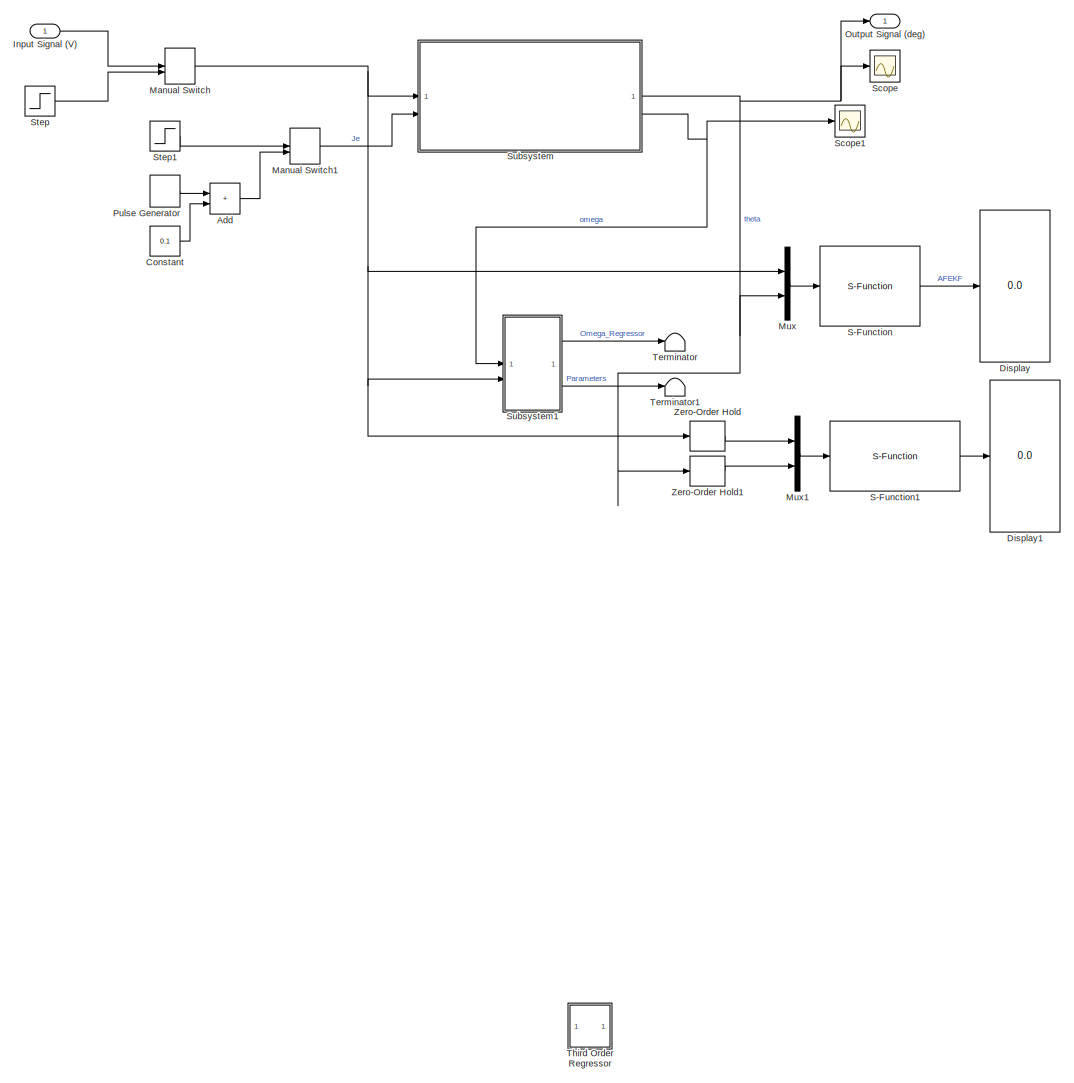
[diagram: root canvas - part 1/1, most of the canvas]
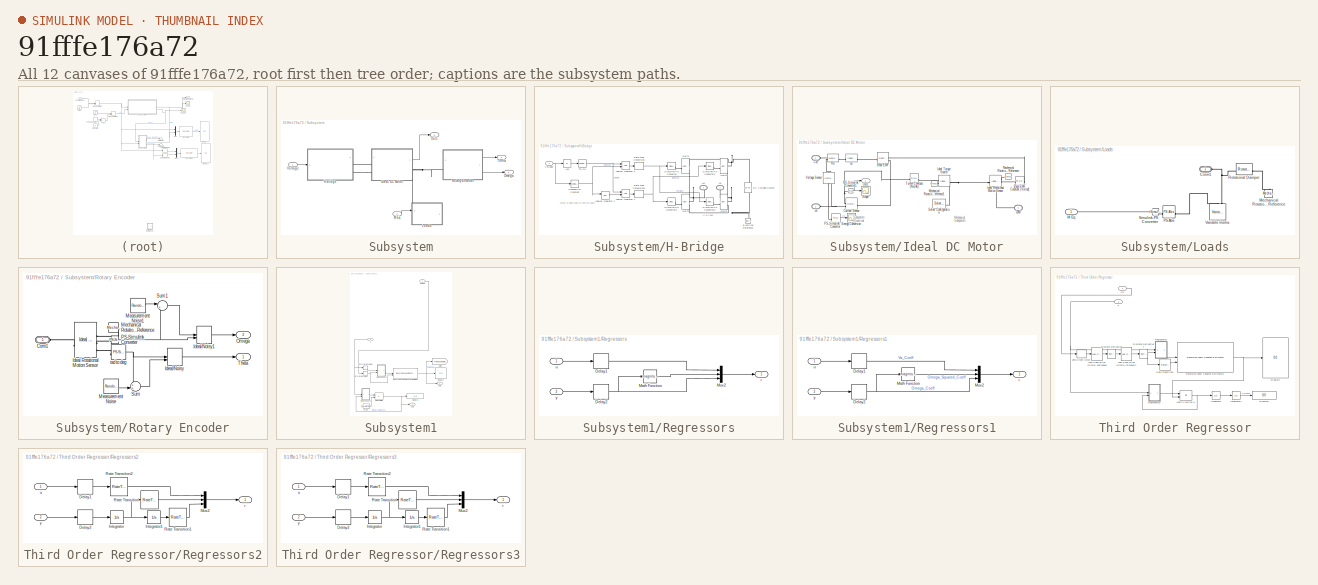
[diagram: thumbnail index - all 12 canvases of the model, root first then tree order]
MODEL slx_91fffe176a72
KIND model
CONFIG AbsTol = auto
CONFIG EnableMultiTasking = off
CONFIG FixedStep = 0.001
CONFIG MaxStep = auto
CONFIG MinStep = auto
CONFIG RelTol = 1e-3
CONFIG SampleTimeConstraint = Unconstrained
CONFIG SolverName = FixedStepAuto
CONFIG StartTime = 0.0
CONFIG StopTime = 50
BLOCK [Sum] Add
  IconShape = rectangular
BLOCK [Constant] Constant
  Value = 0.1
BLOCK [Display] Display
  Commented = on
  Decimation = 1
BLOCK [Display] Display1
  Decimation = 1
BLOCK [Inport] Input Signal (V)
  NameLocation = top
BLOCK [ManualSwitch] Manual Switch
  CurrentSetting = 0
BLOCK [ManualSwitch] Manual Switch1
BLOCK [Mux] Mux
  DisplayOption = bar
  Inputs = 2
BLOCK [Mux] Mux1
  DisplayOption = bar
  Inputs = 2
BLOCK [Outport] Output Signal (deg)
  NameLocation = top
  VectorParamsAs1DForOutWhenUnconnected = off
BLOCK [DiscretePulseGenerator] Pulse Generator
  Amplitude = 0.2
  Period = 10
  PhaseDelay = 5
  PulseType = Time based
  PulseWidth = 50
BLOCK [S-Function] S-Function
  EnableBusSupport = off
  FunctionName = AFEKF
  SFcnIsStateOwnerBlock = off
  SFunctionDeploymentMode = off
BLOCK [S-Function] S-Function1
  EnableBusSupport = off
  FunctionName = RobustEKF_DC_Motor
  SFcnIsStateOwnerBlock = off
  SFunctionDeploymentMode = off
BLOCK [Scope] Scope
  Floating = off
  NumInputPorts = 1
  ScopeSpecificationString = Simulink.scopes.TimeScopeBlockCfg('CurrentConfiguration', extmgr.ConfigurationSet(extmgr.Configuration('Core','General UI',true),extmgr.Configuration('Core','Source UI',true),extmgr.Configuration('Sources','WiredSimulink',true,'DataLoggingVariableName','ScopeData1','DataLoggingSaveFormat','StructureWithTime','DataLoggingLimitDataPoints',true,'DataLoggingDecimation','1','DataLoggingDecimateData',tr...<+1885ch>
BLOCK [Scope] Scope1
  Floating = off
  NumInputPorts = 1
  ScopeSpecificationString = Simulink.scopes.TimeScopeBlockCfg('CurrentConfiguration', extmgr.ConfigurationSet(extmgr.Configuration('Core','General UI',true),extmgr.Configuration('Core','Source UI',true),extmgr.Configuration('Sources','WiredSimulink',true),extmgr.Configuration('Visuals','Time Domain',true,'SerializedDisplays',{struct('MinYLimReal','-0.00445','MaxYLimReal','0.04009','YLabelReal','','MinYLimMag','0.00000','MaxY...<+1465ch>
BLOCK [Step] Step
  After = 12
  SampleTime = 0
  Time = 2
BLOCK [Step] Step1
  After = 0.1
  Before = 0.1
  SampleTime = 0
  Time = 5
BLOCK [SubSystem] Subsystem
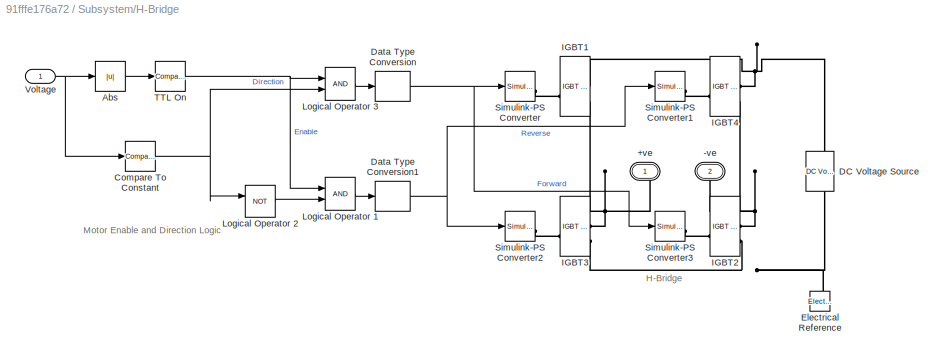
BLOCK [SubSystem] Subsystem/H-Bridge
BLOCK [PMIOPort] Subsystem/H-Bridge/+ve
  NameLocation = top
  Side = Right
  Tag = PMCPort
BLOCK [PMIOPort] Subsystem/H-Bridge/-ve
  NameLocation = top
  Port = 2
  Side = Right
  Tag = PMCPort
BLOCK [Abs] Subsystem/H-Bridge/Abs
  SaturateOnIntegerOverflow = off
BLOCK [Reference] Subsystem/H-Bridge/Compare To Constant  REF=simulink/Logic and Bit
Operations/Compare
To Constant
  SourceBlock = simulink/Logic and Bit\nOperations/Compare\nTo Constant
  SourceType = Compare To Constant
BLOCK [Reference] Subsystem/H-Bridge/DC Voltage Source  REF=fl_lib/Electrical/Electrical Sources/DC Voltage Source
  NameLocation = right
  SourceBlock = fl_lib/Electrical/Electrical Sources/DC Voltage Source
  SourceType = DC Voltage Source
BLOCK [DataTypeConversion] Subsystem/H-Bridge/Data Type Conversion
  OutDataTypeStr = double
  RndMeth = Floor
  SaturateOnIntegerOverflow = off
BLOCK [DataTypeConversion] Subsystem/H-Bridge/Data Type Conversion1
  OutDataTypeStr = double
  RndMeth = Floor
  SaturateOnIntegerOverflow = off
BLOCK [Reference] Subsystem/H-Bridge/Electrical Reference  REF=fl_lib/Electrical/Electrical Elements/Electrical Reference
  NameLocation = right
  SourceBlock = fl_lib/Electrical/Electrical Elements/Electrical Reference
  SourceType = Electrical Reference
BLOCK [Reference] Subsystem/H-Bridge/IGBT1  REF=ee_lib/Semiconductors &
Converters/IGBT
(Ideal,
Switching)
  SourceBlock = ee_lib/Semiconductors &\nConverters/IGBT\n(Ideal,\nSwitching)
  SourceType = IGBT\n(Ideal,\nSwitching)
BLOCK [Reference] Subsystem/H-Bridge/IGBT2  REF=ee_lib/Semiconductors &
Converters/IGBT
(Ideal,
Switching)
  SourceBlock = ee_lib/Semiconductors &\nConverters/IGBT\n(Ideal,\nSwitching)
  SourceType = IGBT\n(Ideal,\nSwitching)
BLOCK [Reference] Subsystem/H-Bridge/IGBT3  REF=ee_lib/Semiconductors &
Converters/IGBT
(Ideal,
Switching)
  SourceBlock = ee_lib/Semiconductors &\nConverters/IGBT\n(Ideal,\nSwitching)
  SourceType = IGBT\n(Ideal,\nSwitching)
BLOCK [Reference] Subsystem/H-Bridge/IGBT4  REF=ee_lib/Semiconductors &
Converters/IGBT
(Ideal,
Switching)
  SourceBlock = ee_lib/Semiconductors &\nConverters/IGBT\n(Ideal,\nSwitching)
  SourceType = IGBT\n(Ideal,\nSwitching)
BLOCK [Logic] Subsystem/H-Bridge/Logical Operator 1
  AllPortsSameDT = off
  OutDataTypeStr = boolean
BLOCK [Logic] Subsystem/H-Bridge/Logical Operator 2
  AllPortsSameDT = off
  Operator = NOT
  OutDataTypeStr = boolean
BLOCK [Logic] Subsystem/H-Bridge/Logical Operator 3
  AllPortsSameDT = off
  OutDataTypeStr = boolean
BLOCK [Reference] Subsystem/H-Bridge/Simulink-PS Converter  REF=nesl_utility/Simulink-PS
Converter
  SourceBlock = nesl_utility/Simulink-PS\nConverter
  SourceType = Simulink-PS\nConverter
BLOCK [Reference] Subsystem/H-Bridge/Simulink-PS Converter1  REF=nesl_utility/Simulink-PS
Converter
  SourceBlock = nesl_utility/Simulink-PS\nConverter
  SourceType = Simulink-PS\nConverter
BLOCK [Reference] Subsystem/H-Bridge/Simulink-PS Converter2  REF=nesl_utility/Simulink-PS
Converter
  SourceBlock = nesl_utility/Simulink-PS\nConverter
  SourceType = Simulink-PS\nConverter
BLOCK [Reference] Subsystem/H-Bridge/Simulink-PS Converter3  REF=nesl_utility/Simulink-PS
Converter
  SourceBlock = nesl_utility/Simulink-PS\nConverter
  SourceType = Simulink-PS\nConverter
BLOCK [Reference] Subsystem/H-Bridge/TTL On  REF=simulink/Logic and Bit
Operations/Compare
To Constant
  SourceBlock = simulink/Logic and Bit\nOperations/Compare\nTo Constant
  SourceType = Compare To Constant
BLOCK [Inport] Subsystem/H-Bridge/Voltage
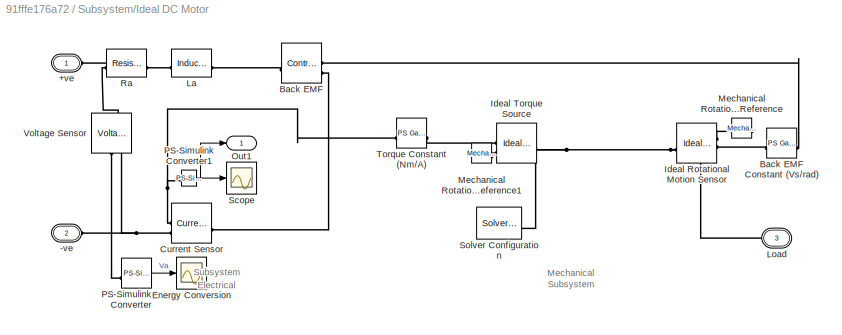
BLOCK [SubSystem] Subsystem/Ideal DC Motor
BLOCK [PMIOPort] Subsystem/Ideal DC Motor/+ve
  Side = Left
  Tag = PMCPort
BLOCK [PMIOPort] Subsystem/Ideal DC Motor/-ve
  Port = 2
  Side = Left
  Tag = PMCPort
BLOCK [Reference] Subsystem/Ideal DC Motor/Back EMF  REF=fl_lib/Electrical/Electrical Sources/Controlled Voltage
Source
  NameLocation = top
  SourceBlock = fl_lib/Electrical/Electrical Sources/Controlled Voltage\nSource
  SourceType = Controlled Voltage\nSource
BLOCK [Reference] Subsystem/Ideal DC Motor/Back EMF Constant (Vs//rad)  REF=fl_ps_legacy_lib/Legacy Physical
Signals/Functions/PS Gain
  SourceBlock = fl_ps_legacy_lib/Legacy Physical\nSignals/Functions/PS Gain
  SourceType = PS Gain
BLOCK [Reference] Subsystem/Ideal DC Motor/Current Sensor  REF=fl_lib/Electrical/Electrical Sensors/Current Sensor
  SourceBlock = fl_lib/Electrical/Electrical Sensors/Current Sensor
  SourceType = Current Sensor
BLOCK [Scope] Subsystem/Ideal DC Motor/Energy Conversion
  Floating = off
  NumInputPorts = 1
  ScopeSpecificationString = Simulink.scopes.TimeScopeBlockCfg('CurrentConfiguration', extmgr.ConfigurationSet(extmgr.Configuration('Core','General UI',true),extmgr.Configuration('Core','Source UI',true),extmgr.Configuration('Sources','WiredSimulink',true,'DataLoggingVariableName','ScopeData11','DataLoggingSaveFormat','StructureWithTime','DataLoggingDecimation','1','DataLoggingDecimateData',true),extmgr.Configuration('Visuals...<+1806ch>
BLOCK [Reference] Subsystem/Ideal DC Motor/Ideal Rotational Motion Sensor  REF=fl_lib/Mechanical/Mechanical Sensors/Ideal Rotational
Motion Sensor
  SourceBlock = fl_lib/Mechanical/Mechanical Sensors/Ideal Rotational\nMotion Sensor
  SourceType = Ideal Rotational\nMotion Sensor
BLOCK [Reference] Subsystem/Ideal DC Motor/Ideal Torque Source  REF=fl_lib/Mechanical/Mechanical Sources/Ideal Torque Source
  SourceBlock = fl_lib/Mechanical/Mechanical Sources/Ideal Torque Source
  SourceType = Ideal Torque Source
BLOCK [Reference] Subsystem/Ideal DC Motor/La  REF=fl_lib/Electrical/Electrical Elements/Inductor
  SourceBlock = fl_lib/Electrical/Electrical Elements/Inductor
  SourceType = Inductor
BLOCK [PMIOPort] Subsystem/Ideal DC Motor/Load
  Port = 3
  Side = Right
BLOCK [Reference] Subsystem/Ideal DC Motor/Mechanical Rotational Reference  REF=fl_lib/Mechanical/Rotational Elements/Mechanical
Rotational Reference
  NameLocation = top
  SourceBlock = fl_lib/Mechanical/Rotational Elements/Mechanical\nRotational Reference
  SourceType = Mechanical\nRotational Reference
BLOCK [Reference] Subsystem/Ideal DC Motor/Mechanical Rotational Reference1  REF=fl_lib/Mechanical/Rotational Elements/Mechanical
Rotational Reference
  SourceBlock = fl_lib/Mechanical/Rotational Elements/Mechanical\nRotational Reference
  SourceType = Mechanical\nRotational Reference
BLOCK [Outport] Subsystem/Ideal DC Motor/Out1
BLOCK [Reference] Subsystem/Ideal DC Motor/PS-Simulink Converter  REF=nesl_utility/PS-Simulink
Converter
  SourceBlock = nesl_utility/PS-Simulink\nConverter
  SourceType = PS-Simulink\nConverter
BLOCK [Reference] Subsystem/Ideal DC Motor/PS-Simulink Converter1  REF=nesl_utility/PS-Simulink
Converter
  SourceBlock = nesl_utility/PS-Simulink\nConverter
  SourceType = PS-Simulink\nConverter
BLOCK [Reference] Subsystem/Ideal DC Motor/Ra  REF=fl_lib/Electrical/Electrical Elements/Resistor
  SourceBlock = fl_lib/Electrical/Electrical Elements/Resistor
  SourceType = Resistor
BLOCK [Scope] Subsystem/Ideal DC Motor/Scope
  Floating = off
  NumInputPorts = 1
  ScopeSpecificationString = Simulink.scopes.TimeScopeBlockCfg('CurrentConfiguration', extmgr.ConfigurationSet(extmgr.Configuration('Core','General UI',true),extmgr.Configuration('Core','Source UI',true),extmgr.Configuration('Sources','WiredSimulink',true,'DataLoggingVariableName','ScopeData5'),extmgr.Configuration('Visuals','Time Domain',true,'SerializedDisplays',{struct('MinYLimReal','-0.14133','MaxYLimReal','1.27199','YLab...<+1524ch>
BLOCK [Reference] Subsystem/Ideal DC Motor/Solver Configuration  REF=nesl_utility/Solver
Configuration
  SourceBlock = nesl_utility/Solver\nConfiguration
  SourceType = Solver\nConfiguration
BLOCK [Reference] Subsystem/Ideal DC Motor/Torque Constant (Nm//A)  REF=fl_ps_legacy_lib/Legacy Physical
Signals/Functions/PS Gain
  SourceBlock = fl_ps_legacy_lib/Legacy Physical\nSignals/Functions/PS Gain
  SourceType = PS Gain
BLOCK [Reference] Subsystem/Ideal DC Motor/Voltage Sensor  REF=fl_lib/Electrical/Electrical Sensors/Voltage Sensor
  NameLocation = right
  SourceBlock = fl_lib/Electrical/Electrical Sensors/Voltage Sensor
  SourceType = Voltage Sensor
BLOCK [SubSystem] Subsystem/Loads
  PortSchema = {"entries":[{"content":{"sides":[{"content":{"connectorIds":["In1"]},"type":"ConnectorPlacement.EquallySpacedRectSide","uuid":"35af7967-d601-467b-871c-2decdb5f576d"},{"content":{"side":"RIGHT"},"type":"ConnectorPlacement.EquallySpacedRectSide","uuid":"f82d529b-61c3-41a9-ad40-44f1ee2700d7"},{"content":{"connectorIds":["LConn1"],"side":"TOP"},"type":"ConnectorPlacement.EquallySpacedRectSide","uuid":...<+224ch>
BLOCK [PMIOPort] Subsystem/Loads/Conn1
  Side = Left
BLOCK [Inport] Subsystem/Loads/M Eq
BLOCK [Reference] Subsystem/Loads/Mechanical Rotational Reference  REF=fl_lib/Mechanical/Rotational Elements/Mechanical
Rotational Reference
  NameLocation = right
  SourceBlock = fl_lib/Mechanical/Rotational Elements/Mechanical\nRotational Reference
  SourceType = Mechanical\nRotational Reference
BLOCK [Reference] Subsystem/Loads/PS Abs  REF=fl_lib/Physical Signals/Nonlinear Operators/PS Abs
  SourceBlock = fl_lib/Physical Signals/Nonlinear Operators/PS Abs
  SourceType = PS Abs
BLOCK [Reference] Subsystem/Loads/Rotational Damper  REF=fl_lib/Mechanical/Rotational Elements/Rotational Damper
  SourceBlock = fl_lib/Mechanical/Rotational Elements/Rotational Damper
  SourceType = Rotational Damper
BLOCK [Reference] Subsystem/Loads/Simulink-PS Converter  REF=nesl_utility/Simulink-PS
Converter
  SourceBlock = nesl_utility/Simulink-PS\nConverter
  SourceType = Simulink-PS\nConverter
BLOCK [Reference] Subsystem/Loads/Variable Inertia  REF=sdl_lib/Inertias & Loads/Variable Inertia
  NameLocation = right
  SourceBlock = sdl_lib/Inertias & Loads/Variable Inertia
  SourceType = Variable Inertia
BLOCK [Inport] Subsystem/M Eq
  Port = 2
BLOCK [Outport] Subsystem/Omega
  Port = 2
BLOCK [Outport] Subsystem/Out1
  Port = 3
BLOCK [SubSystem] Subsystem/Rotary Encoder
BLOCK [PMIOPort] Subsystem/Rotary Encoder/Conn1
  Side = Left
BLOCK [Reference] Subsystem/Rotary Encoder/Ideal Rotational Motion Sensor  REF=fl_lib/Mechanical/Mechanical Sensors/Ideal Rotational
Motion Sensor
  SourceBlock = fl_lib/Mechanical/Mechanical Sensors/Ideal Rotational\nMotion Sensor
  SourceType = Ideal Rotational\nMotion Sensor
BLOCK [ManualSwitch] Subsystem/Rotary Encoder/Ideal//Noisy
BLOCK [ManualSwitch] Subsystem/Rotary Encoder/Ideal//Noisy1
  CurrentSetting = 0
BLOCK [RandomNumber] Subsystem/Rotary Encoder/Measurement Noise
  SampleTime = 0.01
  Variance = 0.001
BLOCK [RandomNumber] Subsystem/Rotary Encoder/Measurement Noise1
  SampleTime = 0.01
  Variance = 0.0001
BLOCK [Reference] Subsystem/Rotary Encoder/Mechanical Rotational Reference  REF=fl_lib/Mechanical/Rotational Elements/Mechanical
Rotational Reference
  NameLocation = top
  SourceBlock = fl_lib/Mechanical/Rotational Elements/Mechanical\nRotational Reference
  SourceType = Mechanical\nRotational Reference
BLOCK [Outport] Subsystem/Rotary Encoder/Omega
  Port = 2
BLOCK [Reference] Subsystem/Rotary Encoder/PS-Simulink Converter  REF=nesl_utility/PS-Simulink
Converter
  SourceBlock = nesl_utility/PS-Simulink\nConverter
  SourceType = PS-Simulink\nConverter
BLOCK [Sum] Subsystem/Rotary Encoder/Sum
  Inputs = ++|
BLOCK [Sum] Subsystem/Rotary Encoder/Sum1
  Inputs = |++
BLOCK [Outport] Subsystem/Rotary Encoder/Theta
BLOCK [Reference] Subsystem/Rotary Encoder/rad to deg  REF=nesl_utility/PS-Simulink
Converter
  SourceBlock = nesl_utility/PS-Simulink\nConverter
  SourceType = PS-Simulink\nConverter
BLOCK [Outport] Subsystem/Theta
BLOCK [Inport] Subsystem/Voltage
BLOCK [SubSystem] Subsystem1
BLOCK [Display] Subsystem1/Display2
  Decimation = 1
BLOCK [Display] Subsystem1/Display3
  Decimation = 1
BLOCK [From] Subsystem1/From
  GotoTag = PARAMETERS
BLOCK [Goto] Subsystem1/Goto
  GotoTag = PARAMETERS
BLOCK [Product] Subsystem1/Matrix Multiply
  Multiplication = Matrix(*)
BLOCK [Outport] Subsystem1/Out1
BLOCK [Outport] Subsystem1/Out2
  Port = 2
BLOCK [Reference] Subsystem1/Recursive Least Squares Estimator  REF=ctrlSharedLib/Recursive Least Squares Estimator
  LibrarySourceBlock = slident/Estimators/Recursive Least Squares Estimator
  SourceBlock = ctrlSharedLib/Recursive Least Squares Estimator
  SourceType = idEstimatorsRLS
BLOCK [SubSystem] Subsystem1/Regressors
BLOCK [Delay] Subsystem1/Regressors/Delay1
  DelayLength = 1
  InitialCondition = 1
  InputPortMap = u0
  SampleTime = 0.001
BLOCK [Delay] Subsystem1/Regressors/Delay2
  DelayLength = 1
  InitialCondition = 2
  InputPortMap = u0
  SampleTime = 0.001
BLOCK [Math] Subsystem1/Regressors/Math Function
  Operator = magnitude^2
  SignedPower = on
BLOCK [Mux] Subsystem1/Regressors/Mux2
  DisplayOption = bar
  Inputs = 3
BLOCK [Outport] Subsystem1/Regressors/r
  VectorParamsAs1DForOutWhenUnconnected = off
BLOCK [Inport] Subsystem1/Regressors/u
BLOCK [Inport] Subsystem1/Regressors/y
  Port = 2
BLOCK [SubSystem] Subsystem1/Regressors1
BLOCK [Delay] Subsystem1/Regressors1/Delay1
  DelayLength = 1
  InitialCondition = 1
  InputPortMap = u0
  SampleTime = 0.001
BLOCK [Delay] Subsystem1/Regressors1/Delay2
  DelayLength = 1
  InitialCondition = 2
  InputPortMap = u0
  SampleTime = 0.001
BLOCK [Math] Subsystem1/Regressors1/Math Function
  Operator = magnitude^2
  SignedPower = on
BLOCK [Mux] Subsystem1/Regressors1/Mux2
  DisplayOption = bar
  Inputs = 3
BLOCK [Outport] Subsystem1/Regressors1/r
  VectorParamsAs1DForOutWhenUnconnected = off
BLOCK [Inport] Subsystem1/Regressors1/u
BLOCK [Inport] Subsystem1/Regressors1/y
  Port = 2
BLOCK [ZeroOrderHold] Subsystem1/Zero-Order Hold2
  SampleTime = 0.001
BLOCK [ZeroOrderHold] Subsystem1/Zero-Order Hold3
  SampleTime = 0.001
BLOCK [Inport] Subsystem1/omega
BLOCK [Inport] Subsystem1/u
  Port = 2
BLOCK [Terminator] Terminator
BLOCK [Terminator] Terminator1
BLOCK [SubSystem] Third Order Regressor
  Commented = on
BLOCK [Reference] Third Order Regressor/Discrete Derivative  REF=simulink/Discrete/Discrete Derivative
  SourceBlock = simulink/Discrete/Discrete Derivative
  SourceType = Discrete Derivative
BLOCK [Reference] Third Order Regressor/Discrete Derivative1  REF=simulink/Discrete/Discrete Derivative
  SourceBlock = simulink/Discrete/Discrete Derivative
  SourceType = Discrete Derivative
BLOCK [Display] Third Order Regressor/Display4
  Decimation = 1
BLOCK [Display] Third Order Regressor/Display5
  Decimation = 1
BLOCK [Inport] Third Order Regressor/In1
BLOCK [Integrator] Third Order Regressor/Integrator
BLOCK [Integrator] Third Order Regressor/Integrator1
BLOCK [Reference] Third Order Regressor/Low-Pass Filter (Discrete or Continuous)  REF=eeGeneralControl/Low-Pass Filter
(Discrete or Continuous)
  LibrarySourceBlock = ee_sl_lib/General Control/Low-Pass Filter\n(Discrete or Continuous)
  SourceBlock = eeGeneralControl/Low-Pass Filter\n(Discrete or Continuous)
  SourceType = Low-Pass Filter (Discrete or Continuous)
BLOCK [Reference] Third Order Regressor/Low-Pass Filter (Discrete or Continuous)1  REF=eeGeneralControl/Low-Pass Filter
(Discrete or Continuous)
  LibrarySourceBlock = ee_sl_lib/General Control/Low-Pass Filter\n(Discrete or Continuous)
  SourceBlock = eeGeneralControl/Low-Pass Filter\n(Discrete or Continuous)
  SourceType = Low-Pass Filter (Discrete or Continuous)
BLOCK [Product] Third Order Regressor/Matrix Multiply1
  Multiplication = Matrix(*)
BLOCK [RateTransition] Third Order Regressor/Rate Transition1
  OutPortSampleTime = 0.001
BLOCK [Reference] Third Order Regressor/Recursive Least Squares Estimator1  REF=ctrlSharedLib/Recursive Least Squares Estimator
  LibrarySourceBlock = slident/Estimators/Recursive Least Squares Estimator
  SourceBlock = ctrlSharedLib/Recursive Least Squares Estimator
  SourceType = idEstimatorsRLS
BLOCK [SubSystem] Third Order Regressor/Regressors2
BLOCK [Delay] Third Order Regressor/Regressors2/Delay1
  DelayLength = 1
  InitialCondition = 1
  InputPortMap = u0
  SampleTime = 0.001
BLOCK [Delay] Third Order Regressor/Regressors2/Delay2
  DelayLength = 1
  InitialCondition = 2
  InputPortMap = u0
  SampleTime = 0.001
BLOCK [Integrator] Third Order Regressor/Regressors2/Integrator
BLOCK [Integrator] Third Order Regressor/Regressors2/Integrator1
BLOCK [Mux] Third Order Regressor/Regressors2/Mux2
  DisplayOption = bar
  Inputs = 3
BLOCK [RateTransition] Third Order Regressor/Regressors2/Rate Transition
  OutPortSampleTime = 0.001
BLOCK [RateTransition] Third Order Regressor/Regressors2/Rate Transition1
  OutPortSampleTime = 0.001
BLOCK [RateTransition] Third Order Regressor/Regressors2/Rate Transition2
  OutPortSampleTime = 0.001
BLOCK [Outport] Third Order Regressor/Regressors2/r
  VectorParamsAs1DForOutWhenUnconnected = off
BLOCK [Inport] Third Order Regressor/Regressors2/u
BLOCK [Inport] Third Order Regressor/Regressors2/y
  Port = 2
BLOCK [SubSystem] Third Order Regressor/Regressors3
BLOCK [Delay] Third Order Regressor/Regressors3/Delay1
  DelayLength = 1
  InitialCondition = 1
  InputPortMap = u0
  SampleTime = 0.001
BLOCK [Delay] Third Order Regressor/Regressors3/Delay2
  DelayLength = 1
  InitialCondition = 2
  InputPortMap = u0
  SampleTime = 0.001
BLOCK [Integrator] Third Order Regressor/Regressors3/Integrator
BLOCK [Integrator] Third Order Regressor/Regressors3/Integrator1
BLOCK [Mux] Third Order Regressor/Regressors3/Mux2
  DisplayOption = bar
  Inputs = 3
BLOCK [RateTransition] Third Order Regressor/Regressors3/Rate Transition
  OutPortSampleTime = 0.001
BLOCK [RateTransition] Third Order Regressor/Regressors3/Rate Transition1
  OutPortSampleTime = 0.001
BLOCK [RateTransition] Third Order Regressor/Regressors3/Rate Transition2
  OutPortSampleTime = 0.001
BLOCK [Outport] Third Order Regressor/Regressors3/r
  VectorParamsAs1DForOutWhenUnconnected = off
BLOCK [Inport] Third Order Regressor/Regressors3/u
BLOCK [Inport] Third Order Regressor/Regressors3/y
  Port = 2
BLOCK [ZeroOrderHold] Third Order Regressor/Zero-Order Hold4
  SampleTime = 0.001
BLOCK [Inport] Third Order Regressor/u
  Port = 2
BLOCK [ZeroOrderHold] Zero-Order Hold
  SampleTime = -1
BLOCK [ZeroOrderHold] Zero-Order Hold1
  SampleTime = -1
ANNOTATION Subsystem/H-Bridge: H-Bridge
ANNOTATION Subsystem/H-Bridge: Motor Enable and Direction Logic
ANNOTATION Subsystem/Ideal DC Motor: Electrical Subsystem
ANNOTATION Subsystem/Ideal DC Motor: Mechanical Subsystem
LINE Add:1 -> Manual Switch1:2
LINE Constant:1 -> Add:2
LINE Input Signal (V):1 -> Manual Switch:1
LINE Manual Switch1:1 -> Subsystem:2
NET Manual Switch:1 -> Mux:1, Subsystem1:2, Subsystem:1, Zero-Order Hold:1
LINE Mux1:1 -> S-Function1:1
LINE Mux:1 -> S-Function:1
LINE Pulse Generator:1 -> Add:1
LINE S-Function1:1 -> Display1:1
LINE S-Function:1 -> Display:1
LINE Step1:1 -> Manual Switch1:1
LINE Step:1 -> Manual Switch:2
LINE Subsystem/H-Bridge/Abs:1 -> Subsystem/H-Bridge/TTL On:1
NET Subsystem/H-Bridge/Compare To Constant:1 -> Subsystem/H-Bridge/Logical Operator 2:1, Subsystem/H-Bridge/Logical Operator 3:2
NET Subsystem/H-Bridge/Data Type Conversion1:1 -> Subsystem/H-Bridge/Simulink-PS Converter1:1, Subsystem/H-Bridge/Simulink-PS Converter2:1
NET Subsystem/H-Bridge/Data Type Conversion:1 -> Subsystem/H-Bridge/Simulink-PS Converter3:1, Subsystem/H-Bridge/Simulink-PS Converter:1
LINE Subsystem/H-Bridge/Logical Operator 1:1 -> Subsystem/H-Bridge/Data Type Conversion1:1
LINE Subsystem/H-Bridge/Logical Operator 2:1 -> Subsystem/H-Bridge/Logical Operator 1:2
LINE Subsystem/H-Bridge/Logical Operator 3:1 -> Subsystem/H-Bridge/Data Type Conversion:1
NET Subsystem/H-Bridge/TTL On:1 -> Subsystem/H-Bridge/Logical Operator 1:1, Subsystem/H-Bridge/Logical Operator 3:1
NET Subsystem/H-Bridge/Voltage:1 -> Subsystem/H-Bridge/Abs:1, Subsystem/H-Bridge/Compare To Constant:1
NET Subsystem/Ideal DC Motor/PS-Simulink Converter1:1 -> Subsystem/Ideal DC Motor/Out1:1, Subsystem/Ideal DC Motor/Scope:1
LINE Subsystem/Ideal DC Motor/PS-Simulink Converter:1 -> Subsystem/Ideal DC Motor/Energy Conversion:1
LINE Subsystem/Ideal DC Motor:1 -> Subsystem/Out1:1
LINE Subsystem/Loads/M Eq:1 -> Subsystem/Loads/Simulink-PS Converter:1
LINE Subsystem/M Eq:1 -> Subsystem/Loads:1
LINE Subsystem/Rotary Encoder/Ideal//Noisy1:1 -> Subsystem/Rotary Encoder/Omega:1
LINE Subsystem/Rotary Encoder/Ideal//Noisy:1 -> Subsystem/Rotary Encoder/Theta:1
LINE Subsystem/Rotary Encoder/Measurement Noise1:1 -> Subsystem/Rotary Encoder/Sum1:1
LINE Subsystem/Rotary Encoder/Measurement Noise:1 -> Subsystem/Rotary Encoder/Sum:2
NET Subsystem/Rotary Encoder/PS-Simulink Converter:1 -> Subsystem/Rotary Encoder/Ideal//Noisy1:2, Subsystem/Rotary Encoder/Sum1:2
LINE Subsystem/Rotary Encoder/Sum1:1 -> Subsystem/Rotary Encoder/Ideal//Noisy1:1
LINE Subsystem/Rotary Encoder/Sum:1 -> Subsystem/Rotary Encoder/Ideal//Noisy:2
NET Subsystem/Rotary Encoder/rad to deg:1 -> Subsystem/Rotary Encoder/Ideal//Noisy:1, Subsystem/Rotary Encoder/Sum:1
LINE Subsystem/Rotary Encoder:1 -> Subsystem/Theta:1
LINE Subsystem/Rotary Encoder:2 -> Subsystem/Omega:1
LINE Subsystem/Voltage:1 -> Subsystem/H-Bridge:1
LINE Subsystem1/From:1 -> Subsystem1/Matrix Multiply:2
NET Subsystem1/Matrix Multiply:1 -> Subsystem1/Display3:1, Subsystem1/Out1:1, Subsystem1/Regressors1:2
NET Subsystem1/Recursive Least Squares Estimator:1 -> Subsystem1/Display2:1, Subsystem1/Goto:1, Subsystem1/Out2:1
LINE Subsystem1/Regressors/Delay1:1 -> Subsystem1/Regressors/Mux2:1
NET Subsystem1/Regressors/Delay2:1 -> Subsystem1/Regressors/Math Function:1, Subsystem1/Regressors/Mux2:3
LINE Subsystem1/Regressors/Math Function:1 -> Subsystem1/Regressors/Mux2:2
LINE Subsystem1/Regressors/Mux2:1 -> Subsystem1/Regressors/r:1
LINE Subsystem1/Regressors/u:1 -> Subsystem1/Regressors/Delay1:1
LINE Subsystem1/Regressors/y:1 -> Subsystem1/Regressors/Delay2:1
LINE Subsystem1/Regressors1/Delay1:1 -> Subsystem1/Regressors1/Mux2:1
NET Subsystem1/Regressors1/Delay2:1 -> Subsystem1/Regressors1/Math Function:1, Subsystem1/Regressors1/Mux2:3
LINE Subsystem1/Regressors1/Math Function:1 -> Subsystem1/Regressors1/Mux2:2
LINE Subsystem1/Regressors1/Mux2:1 -> Subsystem1/Regressors1/r:1
LINE Subsystem1/Regressors1/u:1 -> Subsystem1/Regressors1/Delay1:1
LINE Subsystem1/Regressors1/y:1 -> Subsystem1/Regressors1/Delay2:1
LINE Subsystem1/Regressors1:1 -> Subsystem1/Matrix Multiply:1
LINE Subsystem1/Regressors:1 -> Subsystem1/Recursive Least Squares Estimator:1
NET Subsystem1/Zero-Order Hold2:1 -> Subsystem1/Recursive Least Squares Estimator:2, Subsystem1/Regressors:2
LINE Subsystem1/Zero-Order Hold3:1 -> Subsystem1/Regressors:1
LINE Subsystem1/omega:1 -> Subsystem1/Zero-Order Hold2:1
NET Subsystem1/u:1 -> Subsystem1/Regressors1:1, Subsystem1/Zero-Order Hold3:1
LINE Subsystem1:1 -> Terminator:1
LINE Subsystem1:2 -> Terminator1:1
NET Subsystem:1 -> Mux:2, Output Signal (deg):1, Scope:1, Zero-Order Hold1:1
NET Subsystem:2 -> Scope1:1, Subsystem1:1
NET Third Order Regressor/Discrete Derivative1:1 -> Third Order Regressor/Rate Transition1:1, Third Order Regressor/Regressors2:2
LINE Third Order Regressor/Discrete Derivative:1 -> Third Order Regressor/Low-Pass Filter (Discrete or Continuous)1:1
LINE Third Order Regressor/In1:1 -> Third Order Regressor/Zero-Order Hold4:1
LINE Third Order Regressor/Integrator1:1 -> Third Order Regressor/Display5:1
LINE Third Order Regressor/Integrator:1 -> Third Order Regressor/Integrator1:1
LINE Third Order Regressor/Low-Pass Filter (Discrete or Continuous)1:1 -> Third Order Regressor/Discrete Derivative1:1
LINE Third Order Regressor/Low-Pass Filter (Discrete or Continuous):1 -> Third Order Regressor/Discrete Derivative:1
NET Third Order Regressor/Matrix Multiply1:1 -> Third Order Regressor/Integrator:1, Third Order Regressor/Regressors3:2
LINE Third Order Regressor/Rate Transition1:1 -> Third Order Regressor/Recursive Least Squares Estimator1:2
NET Third Order Regressor/Recursive Least Squares Estimator1:1 -> Third Order Regressor/Display4:1, Third Order Regressor/Matrix Multiply1:2
LINE Third Order Regressor/Regressors2/Delay1:1 -> Third Order Regressor/Regressors2/Rate Transition2:1
LINE Third Order Regressor/Regressors2/Delay2:1 -> Third Order Regressor/Regressors2/Integrator:1
LINE Third Order Regressor/Regressors2/Integrator1:1 -> Third Order Regressor/Regressors2/Rate Transition1:1
NET Third Order Regressor/Regressors2/Integrator:1 -> Third Order Regressor/Regressors2/Integrator1:1, Third Order Regressor/Regressors2/Rate Transition:1
LINE Third Order Regressor/Regressors2/Mux2:1 -> Third Order Regressor/Regressors2/r:1
LINE Third Order Regressor/Regressors2/Rate Transition1:1 -> Third Order Regressor/Regressors2/Mux2:3
LINE Third Order Regressor/Regressors2/Rate Transition2:1 -> Third Order Regressor/Regressors2/Mux2:1
LINE Third Order Regressor/Regressors2/Rate Transition:1 -> Third Order Regressor/Regressors2/Mux2:2
LINE Third Order Regressor/Regressors2/u:1 -> Third Order Regressor/Regressors2/Delay1:1
LINE Third Order Regressor/Regressors2/y:1 -> Third Order Regressor/Regressors2/Delay2:1
LINE Third Order Regressor/Regressors2:1 -> Third Order Regressor/Recursive Least Squares Estimator1:1
LINE Third Order Regressor/Regressors3/Delay1:1 -> Third Order Regressor/Regressors3/Rate Transition2:1
LINE Third Order Regressor/Regressors3/Delay2:1 -> Third Order Regressor/Regressors3/Integrator:1
LINE Third Order Regressor/Regressors3/Integrator1:1 -> Third Order Regressor/Regressors3/Rate Transition1:1
NET Third Order Regressor/Regressors3/Integrator:1 -> Third Order Regressor/Regressors3/Integrator1:1, Third Order Regressor/Regressors3/Rate Transition:1
LINE Third Order Regressor/Regressors3/Mux2:1 -> Third Order Regressor/Regressors3/r:1
LINE Third Order Regressor/Regressors3/Rate Transition1:1 -> Third Order Regressor/Regressors3/Mux2:3
LINE Third Order Regressor/Regressors3/Rate Transition2:1 -> Third Order Regressor/Regressors3/Mux2:1
LINE Third Order Regressor/Regressors3/Rate Transition:1 -> Third Order Regressor/Regressors3/Mux2:2
LINE Third Order Regressor/Regressors3/u:1 -> Third Order Regressor/Regressors3/Delay1:1
LINE Third Order Regressor/Regressors3/y:1 -> Third Order Regressor/Regressors3/Delay2:1
LINE Third Order Regressor/Regressors3:1 -> Third Order Regressor/Matrix Multiply1:1
LINE Third Order Regressor/Zero-Order Hold4:1 -> Third Order Regressor/Low-Pass Filter (Discrete or Continuous):1
NET Third Order Regressor/u:1 -> Third Order Regressor/Regressors2:1, Third Order Regressor/Regressors3:1
LINE Zero-Order Hold1:1 -> Mux1:2
LINE Zero-Order Hold:1 -> Mux1:1
PNET net1: Subsystem/H-Bridge/+ve:RConn1 -- Subsystem/H-Bridge/IGBT1:RConn2 -- Subsystem/H-Bridge/IGBT3:RConn1
PNET net2: Subsystem/H-Bridge/-ve:RConn1 -- Subsystem/H-Bridge/IGBT2:RConn1 -- Subsystem/H-Bridge/IGBT4:RConn2
PNET net3: Subsystem/H-Bridge/DC Voltage Source:LConn1 -- Subsystem/H-Bridge/IGBT1:RConn1 -- Subsystem/H-Bridge/IGBT4:RConn1
PNET net4: Subsystem/H-Bridge/DC Voltage Source:RConn1 -- Subsystem/H-Bridge/Electrical Reference:LConn1 -- Subsystem/H-Bridge/IGBT2:RConn2 -- Subsystem/H-Bridge/IGBT3:RConn2
PLINE Subsystem/H-Bridge/IGBT1:LConn1 -- Subsystem/H-Bridge/Simulink-PS Converter:RConn1
PLINE Subsystem/H-Bridge/IGBT2:LConn1 -- Subsystem/H-Bridge/Simulink-PS Converter3:RConn1
PLINE Subsystem/H-Bridge/IGBT3:LConn1 -- Subsystem/H-Bridge/Simulink-PS Converter2:RConn1
PLINE Subsystem/H-Bridge/IGBT4:LConn1 -- Subsystem/H-Bridge/Simulink-PS Converter1:RConn1
PLINE Subsystem/H-Bridge:RConn1 -- Subsystem/Ideal DC Motor:LConn1
PLINE Subsystem/H-Bridge:RConn2 -- Subsystem/Ideal DC Motor:LConn2
PNET net5: Subsystem/Ideal DC Motor/+ve:RConn1 -- Subsystem/Ideal DC Motor/Ra:LConn1 -- Subsystem/Ideal DC Motor/Voltage Sensor:LConn1
PNET net6: Subsystem/Ideal DC Motor/-ve:RConn1 -- Subsystem/Ideal DC Motor/Current Sensor:RConn2 -- Subsystem/Ideal DC Motor/Voltage Sensor:RConn2
PLINE Subsystem/Ideal DC Motor/Back EMF Constant (Vs//rad):LConn1 -- Subsystem/Ideal DC Motor/Ideal Rotational Motion Sensor:RConn2
PLINE Subsystem/Ideal DC Motor/Back EMF Constant (Vs//rad):RConn1 -- Subsystem/Ideal DC Motor/Back EMF:RConn1
PLINE Subsystem/Ideal DC Motor/Back EMF:LConn1 -- Subsystem/Ideal DC Motor/La:RConn1
PLINE Subsystem/Ideal DC Motor/Back EMF:RConn2 -- Subsystem/Ideal DC Motor/Current Sensor:LConn1
PNET net7: Subsystem/Ideal DC Motor/Current Sensor:RConn1 -- Subsystem/Ideal DC Motor/PS-Simulink Converter1:LConn1 -- Subsystem/Ideal DC Motor/Torque Constant (Nm//A):LConn1
PNET net8: Subsystem/Ideal DC Motor/Ideal Rotational Motion Sensor:LConn1 -- Subsystem/Ideal DC Motor/Ideal Torque Source:LConn1 -- Subsystem/Ideal DC Motor/Load:RConn1 -- Subsystem/Ideal DC Motor/Solver Configuration:RConn1
PLINE Subsystem/Ideal DC Motor/Ideal Rotational Motion Sensor:RConn1 -- Subsystem/Ideal DC Motor/Mechanical Rotational Reference:LConn1
PLINE Subsystem/Ideal DC Motor/Ideal Torque Source:RConn1 -- Subsystem/Ideal DC Motor/Torque Constant (Nm//A):RConn1
PLINE Subsystem/Ideal DC Motor/Ideal Torque Source:RConn2 -- Subsystem/Ideal DC Motor/Mechanical Rotational Reference1:LConn1
PLINE Subsystem/Ideal DC Motor/La:LConn1 -- Subsystem/Ideal DC Motor/Ra:RConn1
PLINE Subsystem/Ideal DC Motor/PS-Simulink Converter:LConn1 -- Subsystem/Ideal DC Motor/Voltage Sensor:RConn1
PNET net9: Subsystem/Ideal DC Motor:RConn1 -- Subsystem/Loads:LConn1 -- Subsystem/Rotary Encoder:LConn1
PNET net10: Subsystem/Loads/Conn1:RConn1 -- Subsystem/Loads/Rotational Damper:LConn1 -- Subsystem/Loads/Variable Inertia:LConn2
PLINE Subsystem/Loads/Mechanical Rotational Reference:LConn1 -- Subsystem/Loads/Rotational Damper:RConn1
PLINE Subsystem/Loads/PS Abs:LConn1 -- Subsystem/Loads/Simulink-PS Converter:RConn1
PLINE Subsystem/Loads/PS Abs:RConn1 -- Subsystem/Loads/Variable Inertia:LConn1
PLINE Subsystem/Rotary Encoder/Conn1:RConn1 -- Subsystem/Rotary Encoder/Ideal Rotational Motion Sensor:LConn1
PLINE Subsystem/Rotary Encoder/Ideal Rotational Motion Sensor:RConn1 -- Subsystem/Rotary Encoder/Mechanical Rotational Reference:LConn1
PLINE Subsystem/Rotary Encoder/Ideal Rotational Motion Sensor:RConn2 -- Subsystem/Rotary Encoder/PS-Simulink Converter:LConn1
PLINE Subsystem/Rotary Encoder/Ideal Rotational Motion Sensor:RConn3 -- Subsystem/Rotary Encoder/rad to deg:LConn1
note: NET lines group one-source signal fan-out (src -> all destinations, sorted); 1:1 wires keep LINE; PNET lines group multi-terminal physical nets as a canonical sorted terminal list (undirected conserving connections); 2-terminal nets keep the pairwise PLINE form
